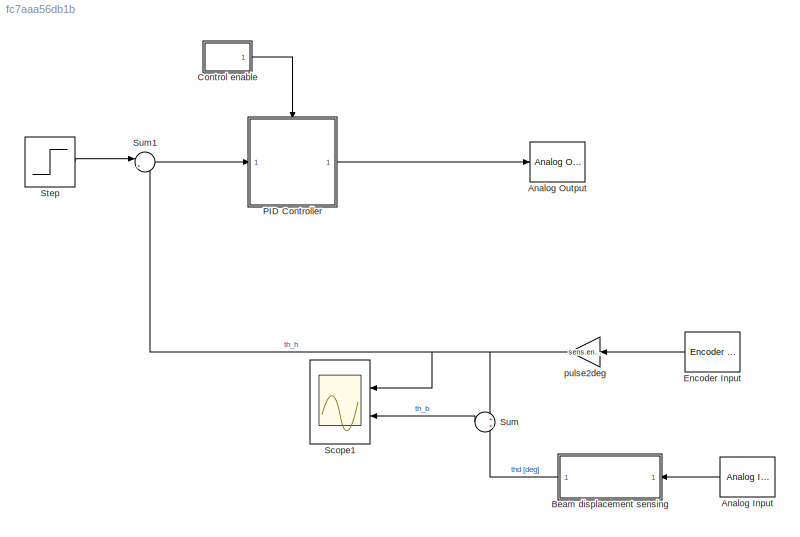
MODEL slx_fc7aaa56db1b
KIND model
CONFIG AbsTol = auto
CONFIG EnableMultiTasking = off
CONFIG FixedStep = 0.001
CONFIG MaxStep = auto
CONFIG MinStep = auto
CONFIG RelTol = 1e-3
CONFIG SampleTimeConstraint = Unconstrained
CONFIG SolverName = ode3
CONFIG StartTime = 0.0
CONFIG StopTime = 5
BLOCK [Reference] Analog Input  REF=sldrtlib/Analog Input
  AttributesFormatString = National Instruments\nPCI-6221 [auto]
  Ports = [0, 1]
  SourceBlock = sldrtlib/Analog Input
  SourceProductBaseCode = WT
  SourceType = Simulink Desktop Real-Time Analog Input
BLOCK [Reference] Analog Output  REF=sldrtlib/Analog Output
  AttributesFormatString = National Instruments\nPCI-6221 [auto]
  Ports = [1]
  SourceBlock = sldrtlib/Analog Output
  SourceProductBaseCode = WT
  SourceType = Simulink Desktop Real-Time Analog Output
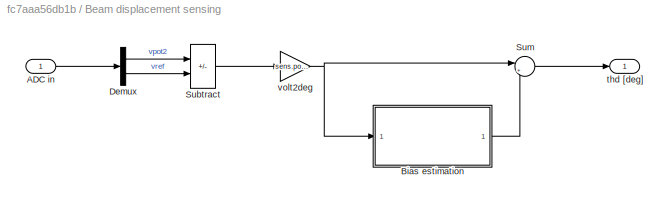
BLOCK [SubSystem] Beam displacement sensing
  Ports = [1, 1]
  RequestExecContextInheritance = off
BLOCK [Inport] Beam displacement sensing/ADC in
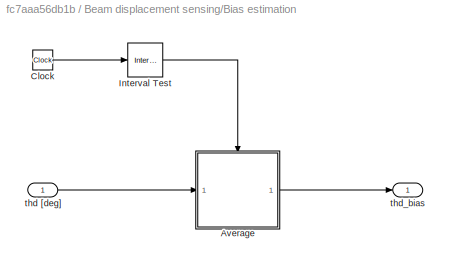
BLOCK [SubSystem] Beam displacement sensing/Bias estimation
  Ports = [1, 1]
  RequestExecContextInheritance = off
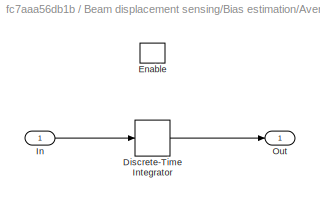
BLOCK [SubSystem] Beam displacement sensing/Bias estimation/Average
  Ports = [1, 1, 1]
  RequestExecContextInheritance = off
BLOCK [DiscreteIntegrator] Beam displacement sensing/Bias estimation/Average/Discrete-Time Integrator
  ICPrevOutput = DiscIntNeverNeededParam
  ICPrevScaledInput = DiscIntNeverNeededParam
  InitialConditionSetting = Auto
  Ports = [1, 1]
  SampleTime = 0.001
  gainval = 2.0
BLOCK [EnablePort] Beam displacement sensing/Bias estimation/Average/Enable
  Ports = []
BLOCK [Inport] Beam displacement sensing/Bias estimation/Average/In
BLOCK [Outport] Beam displacement sensing/Bias estimation/Average/Out
BLOCK [Clock] Beam displacement sensing/Bias estimation/Clock
BLOCK [Reference] Beam displacement sensing/Bias estimation/Interval Test  REF=simulink/Logic and Bit
Operations/Interval Test
  Ports = [1, 1]
  SourceBlock = simulink/Logic and Bit\nOperations/Interval Test
  SourceProductBaseCode = SL
  SourceType = Interval Test
BLOCK [Inport] Beam displacement sensing/Bias estimation/thd [deg]
BLOCK [Outport] Beam displacement sensing/Bias estimation/thd_bias
BLOCK [Demux] Beam displacement sensing/Demux
  Outputs = 2
  Ports = [1, 2]
BLOCK [Sum] Beam displacement sensing/Subtract
  IconShape = rectangular
  Inputs = +-
  Ports = [2, 1]
BLOCK [Sum] Beam displacement sensing/Sum
  Inputs = |+-
  Ports = [2, 1]
BLOCK [Outport] Beam displacement sensing/thd [deg]
BLOCK [Gain] Beam displacement sensing/volt2deg
  Gain = sens.pot2.V2deg
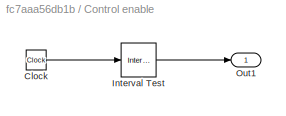
BLOCK [SubSystem] Control enable
  Ports = [0, 1]
  RequestExecContextInheritance = off
BLOCK [Clock] Control enable/Clock
BLOCK [Reference] Control enable/Interval Test  REF=simulink/Logic and Bit
Operations/Interval Test
  Ports = [1, 1]
  SourceBlock = simulink/Logic and Bit\nOperations/Interval Test
  SourceProductBaseCode = SL
  SourceType = Interval Test
BLOCK [Outport] Control enable/Out1
BLOCK [Reference] Encoder Input  REF=sldrtlib/Encoder Input
  AttributesFormatString = National Instruments\nPCI-6221 [auto]
  Ports = [0, 1]
  SourceBlock = sldrtlib/Encoder Input
  SourceProductBaseCode = WT
  SourceType = Simulink Desktop Real-Time Encoder Input
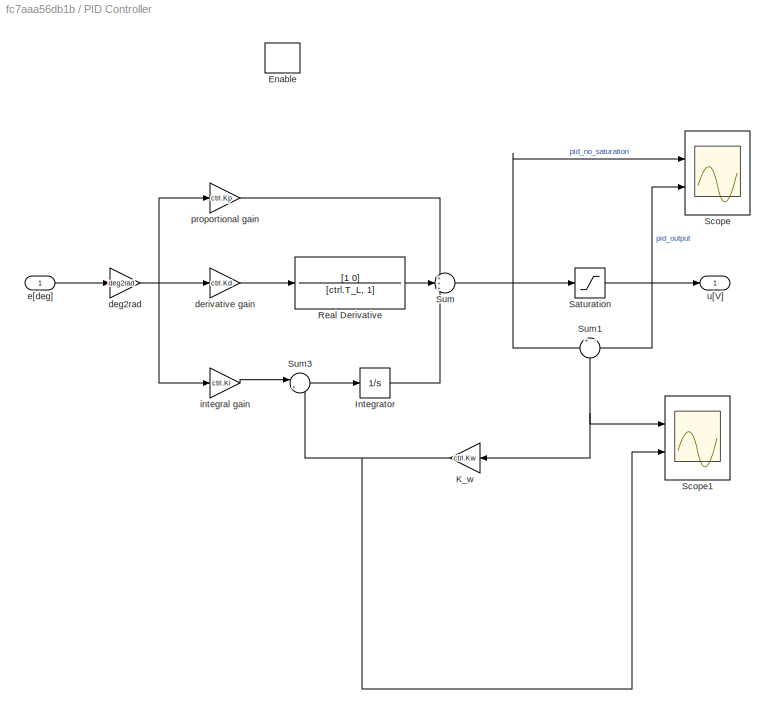
BLOCK [SubSystem] PID Controller
  Ports = [1, 1, 1]
  RequestExecContextInheritance = off
BLOCK [EnablePort] PID Controller/Enable
  Ports = []
  StatesWhenEnabling = reset
BLOCK [Integrator] PID Controller/Integrator
  Ports = [1, 1]
BLOCK [Gain] PID Controller/K_w
  Gain = ctrl.Kw
BLOCK [TransferFcn] PID Controller/Real Derivative
  Denominator = [ctrl.T_L, 1]
  Numerator = [1 0]
BLOCK [Saturate] PID Controller/Saturation
  LowerLimit = -10
  UpperLimit = 10
BLOCK [Scope] PID Controller/Scope
  Floating = off
  NumInputPorts = 2
  Ports = [2]
  ScopeSpecificationString = Simulink.scopes.TimeScopeBlockCfg('CurrentConfiguration', extmgr.ConfigurationSet(extmgr.Configuration('Core','General UI',true),extmgr.Configuration('Core','Source UI',true),extmgr.Configuration('Sources','WiredSimulink',true,'DataLogging',true,'DataLoggingSaveFormat','StructureWithTime','DataLoggingVariableName','PID_data'),extmgr.Configuration('Visuals','Time Domain',true,'SerializedDisplays',{...<+2123ch>
BLOCK [Scope] PID Controller/Scope1
  Floating = off
  NumInputPorts = 2
  Ports = [2]
  ScopeSpecificationString = Simulink.scopes.TimeScopeBlockCfg('CurrentConfiguration', extmgr.ConfigurationSet(extmgr.Configuration('Core','General UI',true),extmgr.Configuration('Core','Source UI',true),extmgr.Configuration('Sources','WiredSimulink',true,'DataLogging',true,'DataLoggingSaveFormat','StructureWithTime','DataLoggingVariableName','ScopeData1'),extmgr.Configuration('Visuals','Time Domain',true,'SerializedDisplays'...<+2135ch>
BLOCK [Sum] PID Controller/Sum
  Inputs = +++
  Ports = [3, 1]
BLOCK [Sum] PID Controller/Sum1
  Inputs = +|-
  NameLocation = left
  Ports = [2, 1]
BLOCK [Sum] PID Controller/Sum3
  Inputs = |+-
  Ports = [2, 1]
BLOCK [Gain] PID Controller/deg2rad
  Gain = deg2rad
BLOCK [Gain] PID Controller/derivative gain
  Gain = ctrl.Kd
BLOCK [Inport] PID Controller/e[deg]
BLOCK [Gain] PID Controller/integral gain
  Gain = ctrl.Ki
BLOCK [Gain] PID Controller/proportional gain
  Gain = ctrl.Kp
BLOCK [Outport] PID Controller/u[V]
BLOCK [Scope] Scope1
  Floating = off
  NumInputPorts = 2
  Ports = [2]
  ScopeSpecificationString = Simulink.scopes.TimeScopeBlockCfg('CurrentConfiguration', extmgr.ConfigurationSet(extmgr.Configuration('Core','General UI',true),extmgr.Configuration('Core','Source UI',true),extmgr.Configuration('Sources','WiredSimulink',true,'DataLoggingVariableName','MotorData','DataLogging',true,'DataLoggingSaveFormat','StructureWithTime'),extmgr.Configuration('Visuals','Time Domain',true,'SerializedDisplays',...<+2048ch>
BLOCK [Step] Step
  After = step_size
  SampleTime = 0.001
BLOCK [Sum] Sum
  NameLocation = top
  Ports = [2, 1]
BLOCK [Sum] Sum1
  Inputs = |+-
  Ports = [2, 1]
BLOCK [Gain] pulse2deg
  Gain = sens.enc.pulse2deg
LINE Analog Input:1 -> Beam displacement sensing:1
LINE Beam displacement sensing/ADC in:1 -> Beam displacement sensing/Demux:1
LINE Beam displacement sensing/Bias estimation/Average/Discrete-Time Integrator:1 -> Beam displacement sensing/Bias estimation/Average/Out:1
LINE Beam displacement sensing/Bias estimation/Average/In:1 -> Beam displacement sensing/Bias estimation/Average/Discrete-Time Integrator:1
LINE Beam displacement sensing/Bias estimation/Average:1 -> Beam displacement sensing/Bias estimation/thd_bias:1
LINE Beam displacement sensing/Bias estimation/Clock:1 -> Beam displacement sensing/Bias estimation/Interval Test:1
LINE Beam displacement sensing/Bias estimation/Interval Test:1 -> Beam displacement sensing/Bias estimation/Average:enable
LINE Beam displacement sensing/Bias estimation/thd [deg]:1 -> Beam displacement sensing/Bias estimation/Average:1
LINE Beam displacement sensing/Bias estimation:1 -> Beam displacement sensing/Sum:2
LINE Beam displacement sensing/Demux:1 -> Beam displacement sensing/Subtract:1
LINE Beam displacement sensing/Demux:2 -> Beam displacement sensing/Subtract:2
LINE Beam displacement sensing/Subtract:1 -> Beam displacement sensing/volt2deg:1
LINE Beam displacement sensing/Sum:1 -> Beam displacement sensing/thd [deg]:1
NET Beam displacement sensing/volt2deg:1 -> Beam displacement sensing/Bias estimation:1, Beam displacement sensing/Sum:1
LINE Beam displacement sensing:1 -> Sum:2
LINE Control enable/Clock:1 -> Control enable/Interval Test:1
LINE Control enable/Interval Test:1 -> Control enable/Out1:1
LINE Control enable:1 -> PID Controller:enable
LINE Encoder Input:1 -> pulse2deg:1
LINE PID Controller/Integrator:1 -> PID Controller/Sum:3
NET PID Controller/K_w:1 -> PID Controller/Scope1:2, PID Controller/Sum3:2
LINE PID Controller/Real Derivative:1 -> PID Controller/Sum:2
NET PID Controller/Saturation:1 -> PID Controller/Scope:2, PID Controller/Sum1:2, PID Controller/u[V]:1
NET PID Controller/Sum1:1 -> PID Controller/K_w:1, PID Controller/Scope1:1
LINE PID Controller/Sum3:1 -> PID Controller/Integrator:1
NET PID Controller/Sum:1 -> PID Controller/Saturation:1, PID Controller/Scope:1, PID Controller/Sum1:1
NET PID Controller/deg2rad:1 -> PID Controller/derivative gain:1, PID Controller/integral gain:1, PID Controller/proportional gain:1
LINE PID Controller/derivative gain:1 -> PID Controller/Real Derivative:1
LINE PID Controller/e[deg]:1 -> PID Controller/deg2rad:1
LINE PID Controller/integral gain:1 -> PID Controller/Sum3:1
LINE PID Controller/proportional gain:1 -> PID Controller/Sum:1
LINE PID Controller:1 -> Analog Output:1
LINE Step:1 -> Sum1:1
LINE Sum1:1 -> PID Controller:1
LINE Sum:1 -> Scope1:2
NET pulse2deg:1 -> Scope1:1, Sum1:2, Sum:1
note: NET lines group one-source signal fan-out (src -> all destinations, sorted); 1:1 wires keep LINE
